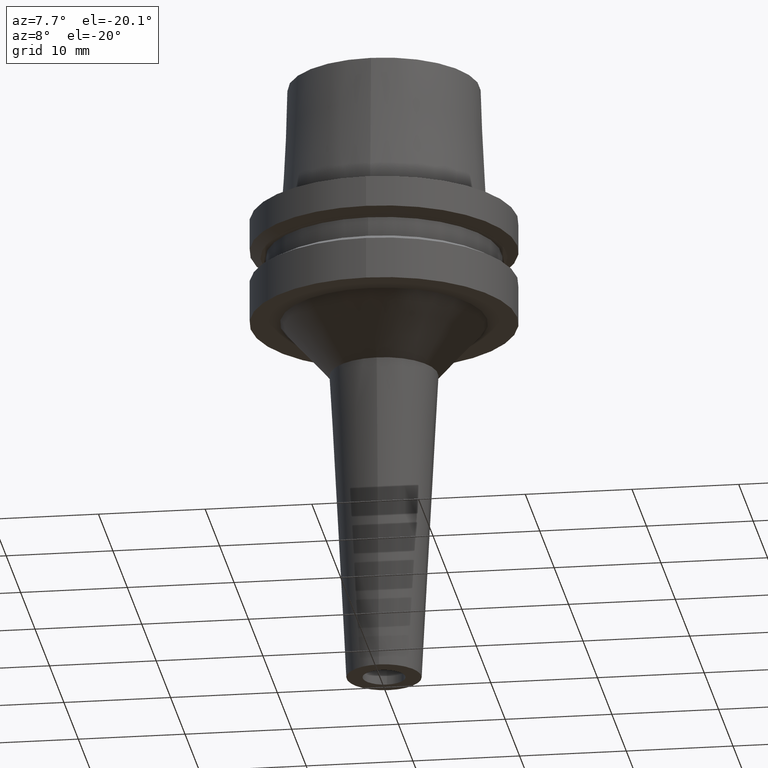
[diagram: clean part render]
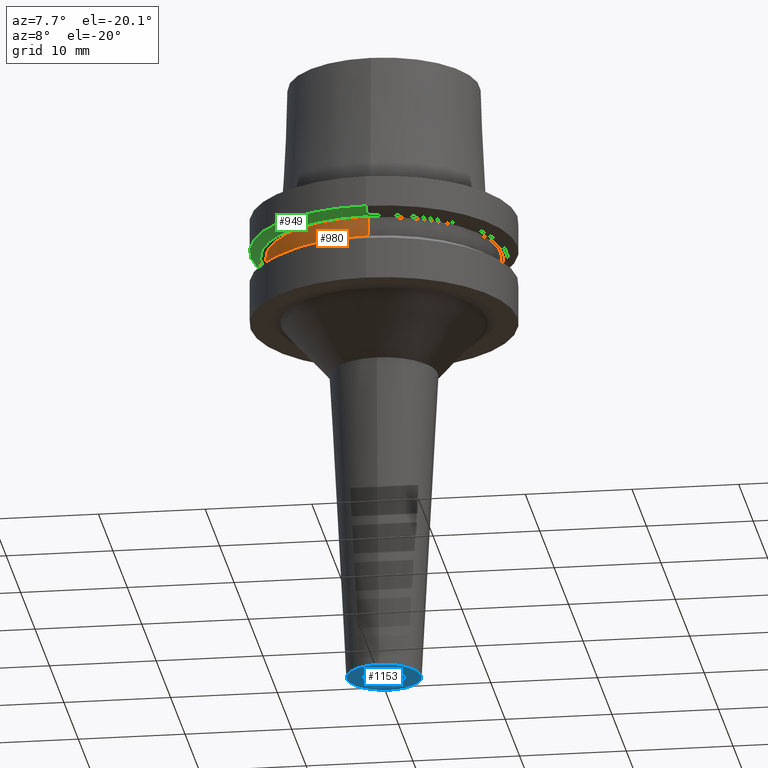
[diagram: same view with three faces highlighted in distinct colors, each labeled with its STEP entity id]
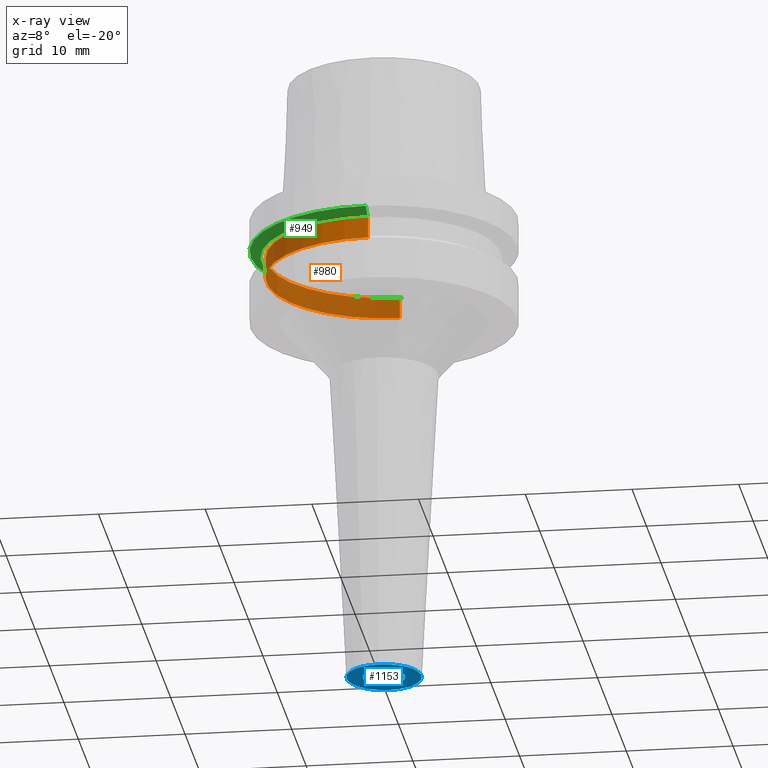
[diagram: x-ray of the same camera — body ghosted, the three highlighted faces saturated]
A machine part, auxiliary view with three faces highlighted in distinct colors.
The next image is the same camera in x-ray (body ghosted, the three faces saturated) — at least one of them is partly hidden behind the body in this view.
Their STEP definitions:

[orange] entity #980 — the highlighted cylindrical surface (partial cylindrical patch) has radius 11 mm, axis along (0, 0, -1).
#156=CARTESIAN_POINT('',(0.E0,1.419365640212E-14,-3.5E0));
#157=DIRECTION('',(0.E0,0.E0,-1.E0));
#158=DIRECTION('',(0.E0,-1.E0,0.E0));
#159=AXIS2_PLACEMENT_3D('',#156,#157,#158);
#172=DIRECTION('',(0.E0,0.E0,-1.E0));
#173=VECTOR('',#172,2.E0);
#174=CARTESIAN_POINT('',(0.E0,-1.1E1,-3.5E0));
#175=LINE('',#174,#173);
#179=DIRECTION('',(0.E0,0.E0,-1.E0));
#180=VECTOR('',#179,2.E0);
#181=CARTESIAN_POINT('',(0.E0,1.1E1,-3.5E0));
#182=LINE('',#181,#180);
#210=CARTESIAN_POINT('',(0.E0,1.419365640212E-14,-5.5E0));
#211=DIRECTION('',(0.E0,0.E0,1.E0));
#212=DIRECTION('',(0.E0,1.E0,0.E0));
#213=AXIS2_PLACEMENT_3D('',#210,#211,#212);
#808=CARTESIAN_POINT('',(0.E0,-1.1E1,-5.5E0));
#809=CARTESIAN_POINT('',(0.E0,1.1E1,-5.5E0));
#810=VERTEX_POINT('',#808);
#811=VERTEX_POINT('',#809);
#812=CARTESIAN_POINT('',(0.E0,1.1E1,-3.5E0));
#813=VERTEX_POINT('',#812);
#814=CARTESIAN_POINT('',(0.E0,-1.1E1,-3.5E0));
#815=VERTEX_POINT('',#814);
#966=CARTESIAN_POINT('',(0.E0,1.419365640212E-14,1.59E1));
#967=DIRECTION('',(0.E0,0.E0,-1.E0));
#968=DIRECTION('',(0.E0,-1.E0,0.E0));
#969=AXIS2_PLACEMENT_3D('',#966,#967,#968);
#970=CYLINDRICAL_SURFACE('',#969,1.1E1);
#972=ORIENTED_EDGE('',*,*,#971,.F.);
#973=ORIENTED_EDGE('',*,*,#959,.F.);
#975=ORIENTED_EDGE('',*,*,#974,.T.);
#977=ORIENTED_EDGE('',*,*,#976,.F.);
#978=EDGE_LOOP('',(#972,#973,#975,#977));
#979=FACE_OUTER_BOUND('',#978,.F.);
#160=CIRCLE('',#159,1.1E1);
#214=CIRCLE('',#213,1.1E1);
#959=EDGE_CURVE('',#815,#813,#160,.T.);
#971=EDGE_CURVE('',#813,#811,#182,.T.);
#974=EDGE_CURVE('',#815,#810,#175,.T.);
#976=EDGE_CURVE('',#811,#810,#214,.T.);
#980=ADVANCED_FACE('',(#979),#970,.T.);

[blue] entity #1153 — the highlighted planar face has unit normal (0, 0, -1).
#338=CARTESIAN_POINT('',(0.E0,0.E0,-4.5E1));
#339=DIRECTION('',(0.E0,0.E0,1.E0));
#340=DIRECTION('',(0.E0,-1.E0,0.E0));
#341=AXIS2_PLACEMENT_3D('',#338,#339,#340);
#346=CARTESIAN_POINT('',(0.E0,0.E0,-4.5E1));
#347=DIRECTION('',(0.E0,0.E0,1.E0));
#348=DIRECTION('',(0.E0,1.E0,0.E0));
#349=AXIS2_PLACEMENT_3D('',#346,#347,#348);
#354=CARTESIAN_POINT('',(0.E0,1.419365640212E-14,-4.5E1));
#355=DIRECTION('',(0.E0,0.E0,-1.E0));
#356=DIRECTION('',(0.E0,-1.E0,0.E0));
#357=AXIS2_PLACEMENT_3D('',#354,#355,#356);
#362=CARTESIAN_POINT('',(0.E0,1.419365640212E-14,-4.5E1));
#363=DIRECTION('',(0.E0,0.E0,-1.E0));
#364=DIRECTION('',(0.E0,1.E0,0.E0));
#365=AXIS2_PLACEMENT_3D('',#362,#363,#364);
#780=CARTESIAN_POINT('',(0.E0,2.E0,-4.5E1));
#781=VERTEX_POINT('',#780);
#782=CARTESIAN_POINT('',(0.E0,-2.E0,-4.5E1));
#783=VERTEX_POINT('',#782);
#784=CARTESIAN_POINT('',(0.E0,-3.5E0,-4.5E1));
#785=CARTESIAN_POINT('',(0.E0,3.5E0,-4.5E1));
#786=VERTEX_POINT('',#784);
#787=VERTEX_POINT('',#785);
#1138=CARTESIAN_POINT('',(0.E0,0.E0,-4.5E1));
#1139=DIRECTION('',(0.E0,0.E0,-1.E0));
#1140=DIRECTION('',(0.E0,-1.E0,0.E0));
#1141=AXIS2_PLACEMENT_3D('',#1138,#1139,#1140);
#1142=PLANE('',#1141);
#1143=ORIENTED_EDGE('',*,*,#1117,.T.);
#1144=ORIENTED_EDGE('',*,*,#1133,.T.);
#1145=EDGE_LOOP('',(#1143,#1144));
#1146=FACE_OUTER_BOUND('',#1145,.F.);
#1148=ORIENTED_EDGE('',*,*,#1147,.T.);
#1150=ORIENTED_EDGE('',*,*,#1149,.T.);
#1151=EDGE_LOOP('',(#1148,#1150));
#1152=FACE_BOUND('',#1151,.F.);
#342=CIRCLE('',#341,3.5E0);
#350=CIRCLE('',#349,3.5E0);
#358=CIRCLE('',#357,2.E0);
#366=CIRCLE('',#365,2.E0);
#1117=EDGE_CURVE('',#786,#787,#342,.T.);
#1133=EDGE_CURVE('',#787,#786,#350,.T.);
#1147=EDGE_CURVE('',#783,#781,#358,.T.);
#1149=EDGE_CURVE('',#781,#783,#366,.T.);
#1153=ADVANCED_FACE('',(#1146,#1152),#1142,.T.);

[green] entity #949 — the highlighted conical surface has half-angle 60 deg.
#110=DIRECTION('',(0.E0,-8.660254037846E-1,-4.999999999997E-1));
#111=VECTOR('',#110,1.175426480542E0);
#112=CARTESIAN_POINT('',(0.E0,1.25E1,-2.912286759728E0));
#113=LINE('',#112,#111);
#125=CARTESIAN_POINT('',(0.E0,1.185382866870E-14,-2.912286759727E0));
#126=DIRECTION('',(0.E0,0.E0,1.E0));
#127=DIRECTION('',(0.E0,1.E0,0.E0));
#128=AXIS2_PLACEMENT_3D('',#125,#126,#127);
#133=DIRECTION('',(0.E0,8.660254037846E-1,-4.999999999997E-1));
#134=VECTOR('',#133,1.175426480542E0);
#135=CARTESIAN_POINT('',(0.E0,-1.25E1,-2.912286759728E0));
#136=LINE('',#135,#134);
#148=CARTESIAN_POINT('',(0.E0,1.185382866870E-14,-3.499999999997E0));
#149=DIRECTION('',(0.E0,0.E0,1.E0));
#150=DIRECTION('',(0.E0,1.E0,0.E0));
#151=AXIS2_PLACEMENT_3D('',#148,#149,#150);
#816=CARTESIAN_POINT('',(0.E0,-1.148205080757E1,-3.499999999997E0));
#817=CARTESIAN_POINT('',(0.E0,1.148205080757E1,-3.499999999997E0));
#818=VERTEX_POINT('',#816);
#819=VERTEX_POINT('',#817);
#820=CARTESIAN_POINT('',(0.E0,1.25E1,-2.912286759728E0));
#821=VERTEX_POINT('',#820);
#822=CARTESIAN_POINT('',(0.E0,-1.25E1,-2.912286759728E0));
#823=VERTEX_POINT('',#822);
#937=CARTESIAN_POINT('',(0.E0,1.185382866870E-14,-3.206143379862E0));
#938=DIRECTION('',(0.E0,0.E0,1.E0));
#939=DIRECTION('',(0.E0,1.E0,0.E0));
#940=AXIS2_PLACEMENT_3D('',#937,#938,#939);
#941=CONICAL_SURFACE('',#940,1.199102540378E1,6.E1);
#942=ORIENTED_EDGE('',*,*,#927,.F.);
#943=ORIENTED_EDGE('',*,*,#904,.T.);
#944=ORIENTED_EDGE('',*,*,#931,.T.);
#946=ORIENTED_EDGE('',*,*,#945,.F.);
#947=EDGE_LOOP('',(#942,#943,#944,#946));
#948=FACE_OUTER_BOUND('',#947,.F.);
#129=CIRCLE('',#128,1.25E1);
#152=CIRCLE('',#151,1.148205080757E1);
#904=EDGE_CURVE('',#821,#823,#129,.T.);
#927=EDGE_CURVE('',#821,#819,#113,.T.);
#931=EDGE_CURVE('',#823,#818,#136,.T.);
#945=EDGE_CURVE('',#819,#818,#152,.T.);
#949=ADVANCED_FACE('',(#948),#941,.T.);